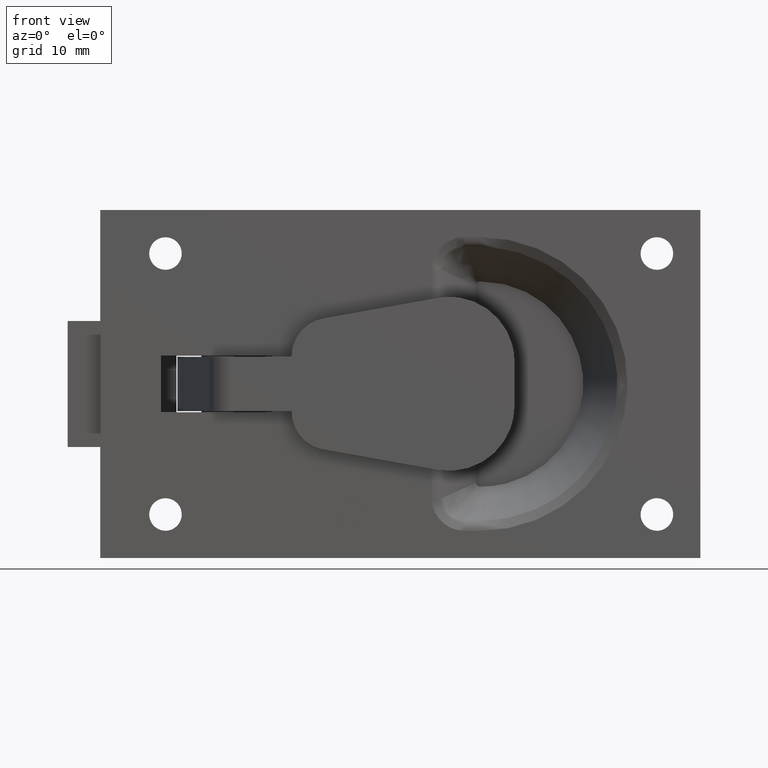
[diagram: clean part render]
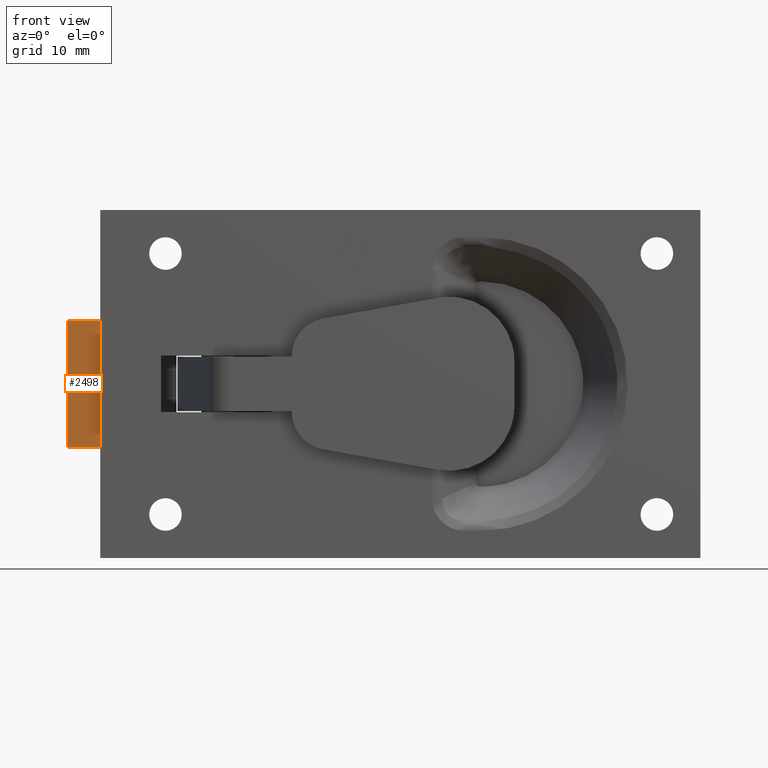
[diagram: same view with one face highlighted and labeled with its STEP entity id]
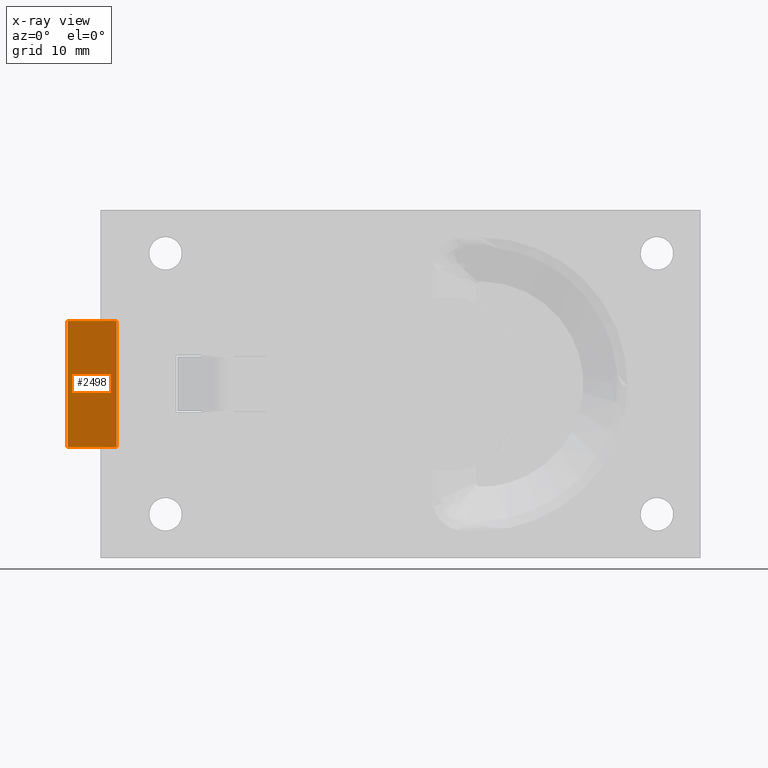
[diagram: x-ray of the same camera — body ghosted, the highlighted face saturated]
A machine part, front view. The second image highlights one B-rep face of the part: STEP entity #2498.
The next image is the same camera in x-ray: the body ghosted, the highlighted face saturated — about 0% of this face is hidden behind the body in this view.
In plain terms, the highlighted face is a freeform B-spline surface patch.
Its self-contained STEP definition (entity closure, byte-faithful):
#2322=CARTESIAN_POINT('',(-13.799987999999900,1.199997000000110,5.800000000000000));
#2323=VERTEX_POINT('',#2322);
#2331=CARTESIAN_POINT('',(-9.299987999999900,1.199997000000110,5.800000000000000));
#2332=VERTEX_POINT('',#2331);
#2333=CARTESIAN_POINT('',(-9.299987999999900,1.199997000000110,5.800000000000000));
#2334=CARTESIAN_POINT('',(-13.799987999999900,1.199997000000110,5.800000000000000));
#2335=QUASI_UNIFORM_CURVE('',1,(#2333,#2334),.UNSPECIFIED.,.F.,.U.);
#2336=EDGE_CURVE('',#2332,#2323,#2335,.T.);
#2403=CARTESIAN_POINT('',(-13.799987999999900,1.199997000000110,-5.800000000000000));
#2404=VERTEX_POINT('',#2403);
#2464=CARTESIAN_POINT('',(-9.299987999999900,1.199997000000110,-5.800000000000000));
#2465=VERTEX_POINT('',#2464);
#2471=CARTESIAN_POINT('',(-9.299987999999900,1.199997000000110,-5.800000000000000));
#2472=CARTESIAN_POINT('',(-13.799987999999900,1.199997000000110,-5.800000000000000));
#2473=QUASI_UNIFORM_CURVE('',1,(#2471,#2472),.UNSPECIFIED.,.F.,.U.);
#2474=EDGE_CURVE('',#2465,#2404,#2473,.T.);
#2479=CARTESIAN_POINT('',(-14.024762780064130,1.199997000000110,-6.379420195301949));
#2480=CARTESIAN_POINT('',(-14.024762780064130,1.199997000000110,6.379420299014031));
#2481=CARTESIAN_POINT('',(-9.075212898070594,1.199997000000110,-6.379420195301949));
#2482=CARTESIAN_POINT('',(-9.075212898070594,1.199997000000110,6.379420299014031));
#2483=B_SPLINE_SURFACE_WITH_KNOTS('',1,1,((#2479,#2481),(#2480,#2482)),.UNSPECIFIED.,.F.,.F.,.U.,(2,2),(2,2),(0.0,12.758840494315979),(0.0,4.949549881993534),.UNSPECIFIED.);
#2484=ORIENTED_EDGE('',*,*,#2336,.T.);
#2485=CARTESIAN_POINT('',(-13.799987999999900,1.199997000000110,-5.800000000000000));
#2486=CARTESIAN_POINT('',(-13.799987999999900,1.199997000000110,5.800000000000000));
#2487=QUASI_UNIFORM_CURVE('',1,(#2485,#2486),.UNSPECIFIED.,.F.,.U.);
#2488=EDGE_CURVE('',#2404,#2323,#2487,.T.);
#2489=ORIENTED_EDGE('',*,*,#2488,.F.);
#2490=ORIENTED_EDGE('',*,*,#2474,.F.);
#2491=CARTESIAN_POINT('',(-9.299987999999900,1.199997000000110,-5.800000000000000));
#2492=CARTESIAN_POINT('',(-9.299987999999900,1.199997000000110,5.800000000000000));
#2493=QUASI_UNIFORM_CURVE('',1,(#2491,#2492),.UNSPECIFIED.,.F.,.U.);
#2494=EDGE_CURVE('',#2465,#2332,#2493,.T.);
#2495=ORIENTED_EDGE('',*,*,#2494,.T.);
#2496=EDGE_LOOP('',(#2484,#2489,#2490,#2495));
#2497=FACE_OUTER_BOUND('',#2496,.T.);
#2498=ADVANCED_FACE('',(#2497),#2483,.F.);